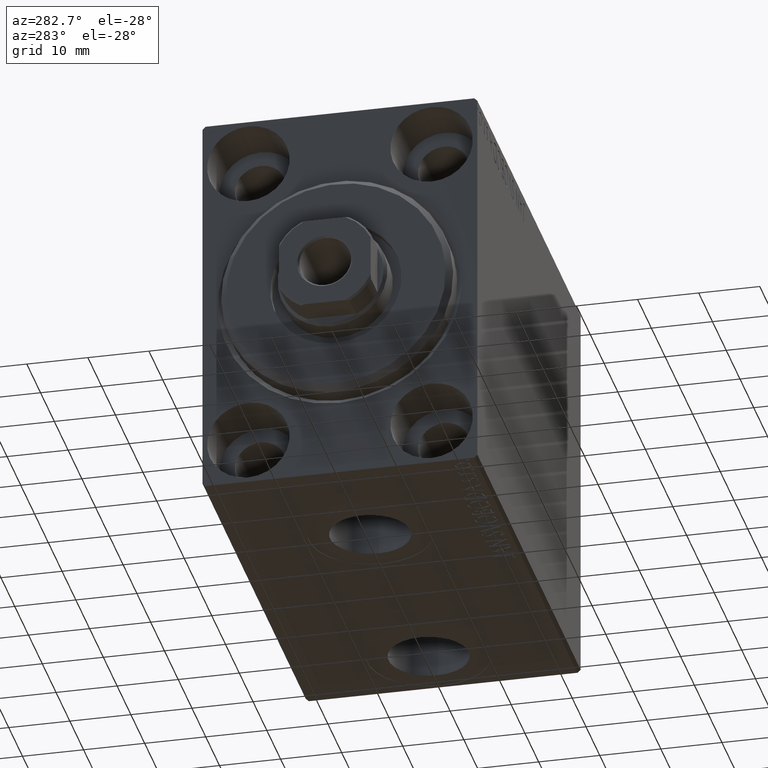
[diagram: clean part render]
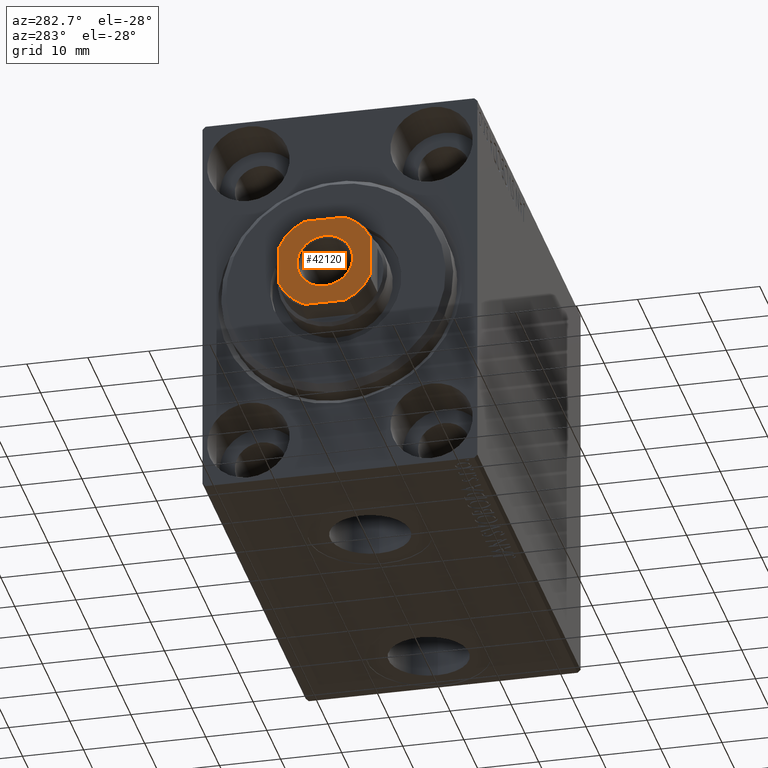
[diagram: same view with one face highlighted and labeled with its STEP entity id]
A machine part, auxiliary view. The second image highlights one B-rep face of the part: STEP entity #42120.
In plain terms, the highlighted planar face has unit normal (-1, 0, 0).
Its self-contained STEP definition (entity closure, byte-faithful):
#446 = ORIENTED_EDGE ( 'NONE', *, *, #14602, .T. ) ;
#534 = DIRECTION ( 'NONE',  ( -1.000000000000000000, 5.782411586589357392E-17, -0.000000000000000000 ) ) ;
#582 = CIRCLE ( 'NONE', #20373, 8.200000000000029488 ) ;
#3120 = CARTESIAN_POINT ( 'NONE',  ( 7.499999999999998224, -3.315116890850200004, 80.00000000000001421 ) ) ;
#3165 = EDGE_CURVE ( 'NONE', #12130, #27233, #31588, .T. ) ;
#3794 = VECTOR ( 'NONE', #32942, 1000.000000000000000 ) ;
#3890 = VERTEX_POINT ( 'NONE', #23451 ) ;
#4218 = CARTESIAN_POINT ( 'NONE',  ( 0.000000000000000000, 0.000000000000000000, 80.00000000000001421 ) ) ;
#4231 = CARTESIAN_POINT ( 'NONE',  ( 3.315116890850199116, 7.500000000000000888, 80.00000000000001421 ) ) ;
#4432 = DIRECTION ( 'NONE',  ( 0.000000000000000000, -0.000000000000000000, -1.000000000000000000 ) ) ;
#4772 = ORIENTED_EDGE ( 'NONE', *, *, #34741, .T. ) ;
#4841 = EDGE_CURVE ( 'NONE', #3890, #27211, #27355, .T. ) ;
#4843 = CARTESIAN_POINT ( 'NONE',  ( 7.499999999999997335, 7.500000000000000888, 80.00000000000001421 ) ) ;
#4969 = CARTESIAN_POINT ( 'NONE',  ( 7.499999999999998224, 3.315116890850205777, 80.00000000000001421 ) ) ;
#5160 = DIRECTION ( 'NONE',  ( 1.000000000000000000, 0.000000000000000000, 0.000000000000000000 ) ) ;
#5505 = PLANE ( 'NONE',  #18067 ) ;
#5808 = DIRECTION ( 'NONE',  ( 1.000000000000000000, 0.000000000000000000, 0.000000000000000000 ) ) ;
#5842 = EDGE_CURVE ( 'NONE', #27211, #12130, #27991, .T. ) ;
#6827 = AXIS2_PLACEMENT_3D ( 'NONE', #15971, #39587, #19978 ) ;
#6903 = DIRECTION ( 'NONE',  ( 1.000000000000000000, 0.000000000000000000, 0.000000000000000000 ) ) ;
#8705 = EDGE_CURVE ( 'NONE', #40556, #18548, #32435, .T. ) ;
#9144 = LINE ( 'NONE', #36300, #32212 ) ;
#9485 = FACE_OUTER_BOUND ( 'NONE', #25763, .T. ) ;
#11714 = AXIS2_PLACEMENT_3D ( 'NONE', #22067, #35644, #5160 ) ;
#11742 = VERTEX_POINT ( 'NONE', #15060 ) ;
#12130 = VERTEX_POINT ( 'NONE', #4969 ) ;
#12441 = CARTESIAN_POINT ( 'NONE',  ( 0.000000000000000000, 0.000000000000000000, 80.00000000000001421 ) ) ;
#13025 = DIRECTION ( 'NONE',  ( -0.000000000000000000, 0.000000000000000000, 1.000000000000000000 ) ) ;
#13149 = EDGE_CURVE ( 'NONE', #27233, #40556, #17424, .T. ) ;
#13879 = AXIS2_PLACEMENT_3D ( 'NONE', #4218, #4432, #31360 ) ;
#14031 = VECTOR ( 'NONE', #534, 1000.000000000000000 ) ;
#14294 = ORIENTED_EDGE ( 'NONE', *, *, #29989, .T. ) ;
#14602 = EDGE_CURVE ( 'NONE', #32279, #20738, #582, .T. ) ;
#15060 = CARTESIAN_POINT ( 'NONE',  ( 4.549999999999984723, 0.000000000000000000, 80.00000000000001421 ) ) ;
#15272 = DIRECTION ( 'NONE',  ( -1.156482317317871478E-16, 1.000000000000000000, -0.000000000000000000 ) ) ;
#15971 = CARTESIAN_POINT ( 'NONE',  ( 0.000000000000000000, 0.000000000000000000, 80.00000000000001421 ) ) ;
#16146 = FACE_BOUND ( 'NONE', #17718, .T. ) ;
#16789 = DIRECTION ( 'NONE',  ( 0.000000000000000000, -0.000000000000000000, -1.000000000000000000 ) ) ;
#16866 = LINE ( 'NONE', #30455, #3794 ) ;
#17424 = LINE ( 'NONE', #31012, #14031 ) ;
#17718 = EDGE_LOOP ( 'NONE', ( #14294, #31662 ) ) ;
#18067 = AXIS2_PLACEMENT_3D ( 'NONE', #29301, #13025, #26403 ) ;
#18548 = VERTEX_POINT ( 'NONE', #43522 ) ;
#19200 = ORIENTED_EDGE ( 'NONE', *, *, #13149, .T. ) ;
#19310 = AXIS2_PLACEMENT_3D ( 'NONE', #33726, #16789, #37739 ) ;
#19978 = DIRECTION ( 'NONE',  ( 1.000000000000000000, 0.000000000000000000, 0.000000000000000000 ) ) ;
#20373 = AXIS2_PLACEMENT_3D ( 'NONE', #40729, #23810, #6903 ) ;
#20738 = VERTEX_POINT ( 'NONE', #24527 ) ;
#20747 = CIRCLE ( 'NONE', #19310, 4.549999999999984723 ) ;
#22067 = CARTESIAN_POINT ( 'NONE',  ( 0.000000000000000000, 0.000000000000000000, 80.00000000000001421 ) ) ;
#22908 = DIRECTION ( 'NONE',  ( -0.000000000000000000, 0.000000000000000000, 1.000000000000000000 ) ) ;
#23344 = DIRECTION ( 'NONE',  ( 1.000000000000000000, 0.000000000000000000, 0.000000000000000000 ) ) ;
#23387 = VERTEX_POINT ( 'NONE', #24135 ) ;
#23451 = CARTESIAN_POINT ( 'NONE',  ( 3.315116890850202225, -7.499999999999996447, 80.00000000000001421 ) ) ;
#23810 = DIRECTION ( 'NONE',  ( -0.000000000000000000, 0.000000000000000000, 1.000000000000000000 ) ) ;
#24135 = CARTESIAN_POINT ( 'NONE',  ( -4.549999999999984723, 5.572142936120437605E-16, 80.00000000000001421 ) ) ;
#24527 = CARTESIAN_POINT ( 'NONE',  ( -3.315116890850236420, -7.499999999999998224, 80.00000000000001421 ) ) ;
#25328 = EDGE_CURVE ( 'NONE', #23387, #11742, #28986, .T. ) ;
#25763 = EDGE_LOOP ( 'NONE', ( #38095, #34041, #19200, #30606, #4772, #446, #42785, #40705 ) ) ;
#26403 = DIRECTION ( 'NONE',  ( 1.000000000000000000, 0.000000000000000000, 0.000000000000000000 ) ) ;
#27211 = VERTEX_POINT ( 'NONE', #3120 ) ;
#27233 = VERTEX_POINT ( 'NONE', #4231 ) ;
#27355 = CIRCLE ( 'NONE', #11714, 8.200000000000017053 ) ;
#27991 = LINE ( 'NONE', #4843, #41634 ) ;
#28986 = CIRCLE ( 'NONE', #13879, 4.549999999999984723 ) ;
#29301 = CARTESIAN_POINT ( 'NONE',  ( 0.000000000000000000, 0.000000000000000000, 80.00000000000001421 ) ) ;
#29989 = EDGE_CURVE ( 'NONE', #11742, #23387, #20747, .T. ) ;
#30455 = CARTESIAN_POINT ( 'NONE',  ( -7.500000000000001776, 7.500000000000001776, 80.00000000000001421 ) ) ;
#30606 = ORIENTED_EDGE ( 'NONE', *, *, #8705, .T. ) ;
#30963 = CARTESIAN_POINT ( 'NONE',  ( -7.499999999999999112, -3.315116890850232423, 80.00000000000001421 ) ) ;
#31012 = CARTESIAN_POINT ( 'NONE',  ( -7.500000000000001776, 7.500000000000001776, 80.00000000000001421 ) ) ;
#31360 = DIRECTION ( 'NONE',  ( 1.000000000000000000, 0.000000000000000000, 0.000000000000000000 ) ) ;
#31588 = CIRCLE ( 'NONE', #38702, 8.200000000000018829 ) ;
#31662 = ORIENTED_EDGE ( 'NONE', *, *, #25328, .T. ) ;
#32212 = VECTOR ( 'NONE', #5808, 1000.000000000000000 ) ;
#32279 = VERTEX_POINT ( 'NONE', #30963 ) ;
#32435 = CIRCLE ( 'NONE', #6827, 8.200000000000002842 ) ;
#32942 = DIRECTION ( 'NONE',  ( 1.734723475976807094E-16, -1.000000000000000000, 0.000000000000000000 ) ) ;
#33726 = CARTESIAN_POINT ( 'NONE',  ( 0.000000000000000000, 0.000000000000000000, 80.00000000000001421 ) ) ;
#34041 = ORIENTED_EDGE ( 'NONE', *, *, #3165, .T. ) ;
#34741 = EDGE_CURVE ( 'NONE', #18548, #32279, #16866, .T. ) ;
#35644 = DIRECTION ( 'NONE',  ( -0.000000000000000000, 0.000000000000000000, 1.000000000000000000 ) ) ;
#36300 = CARTESIAN_POINT ( 'NONE',  ( -7.499999999999999112, -7.499999999999998224, 80.00000000000001421 ) ) ;
#37739 = DIRECTION ( 'NONE',  ( 1.000000000000000000, 0.000000000000000000, 0.000000000000000000 ) ) ;
#38095 = ORIENTED_EDGE ( 'NONE', *, *, #5842, .T. ) ;
#38702 = AXIS2_PLACEMENT_3D ( 'NONE', #12441, #22908, #23344 ) ;
#39421 = CARTESIAN_POINT ( 'NONE',  ( -3.315116890850159148, 7.500000000000000888, 80.00000000000001421 ) ) ;
#39587 = DIRECTION ( 'NONE',  ( -0.000000000000000000, 0.000000000000000000, 1.000000000000000000 ) ) ;
#39659 = EDGE_CURVE ( 'NONE', #20738, #3890, #9144, .T. ) ;
#40556 = VERTEX_POINT ( 'NONE', #39421 ) ;
#40705 = ORIENTED_EDGE ( 'NONE', *, *, #4841, .T. ) ;
#40729 = CARTESIAN_POINT ( 'NONE',  ( 0.000000000000000000, 0.000000000000000000, 80.00000000000001421 ) ) ;
#41634 = VECTOR ( 'NONE', #15272, 1000.000000000000000 ) ;
#42120 = ADVANCED_FACE ( 'NONE', ( #16146, #9485 ), #5505, .T. ) ;
#42785 = ORIENTED_EDGE ( 'NONE', *, *, #39659, .T. ) ;
#43522 = CARTESIAN_POINT ( 'NONE',  ( -7.500000000000000888, 3.315116890850160036, 80.00000000000001421 ) ) ;